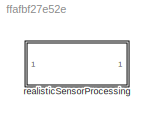
MODEL slx_ffafbf27e52e
KIND library
CONFIG AbsTol = auto
CONFIG EnableMultiTasking = off
CONFIG FixedStep = auto
CONFIG MaxStep = auto
CONFIG MinStep = auto
CONFIG RelTol = 1e-3
CONFIG SampleTimeConstraint = Unconstrained
CONFIG Solver = VariableStepAuto
CONFIG SolverName = VariableStepAuto
CONFIG StartTime = 0.0
CONFIG StopTime = 10.0
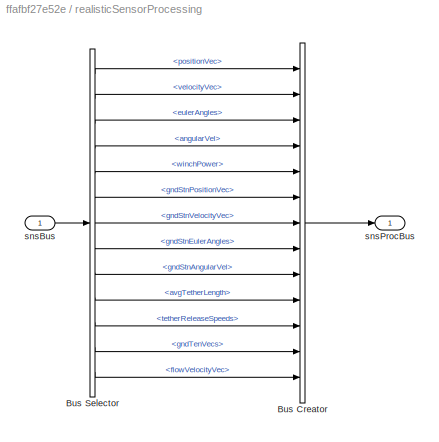
BLOCK [SubSystem] realisticSensorProcessing
  InitFcn = initializeBussesFromBlock(gcb)
  LoadFcn = initializeBussesFromBlock(gcb)
  Ports = [1, 1]
  RequestExecContextInheritance = off
  StartFcn = initializeBussesFromBlock(gcb)
BLOCK [BusCreator] realisticSensorProcessing/Bus Creator
  DisplayOption = bar
  InheritFromInputs = on
  Inputs = 13
  NonVirtualBus = on
  OutDataTypeStr = Bus: sensorsProcessingBus
  Ports = [13, 1]
BLOCK [BusSelector] realisticSensorProcessing/Bus Selector
  OutputAsBus = off
  OutputSignals = positionVec,velocityVec,eulerAngles,angularVel,winchPower,gndStnPositionVec,gndStnVelocityVec,gndStnEulerAngles,gndStnAngularVel,avgTetherLength,tetherReleaseSpeeds,gndTenVecs,flowVelocityVec
  Ports = [1, 13]
BLOCK [Inport] realisticSensorProcessing/snsBus
  IconDisplay = Port number
  OutDataTypeStr = Bus: sensorsBus
BLOCK [Outport] realisticSensorProcessing/snsProcBus
  IconDisplay = Port number
  OutDataTypeStr = Bus: sensorsProcessingBus
LINE realisticSensorProcessing/Bus Creator:1 -> realisticSensorProcessing/snsProcBus:1
LINE realisticSensorProcessing/Bus Selector:1 -> realisticSensorProcessing/Bus Creator:1
LINE realisticSensorProcessing/Bus Selector:10 -> realisticSensorProcessing/Bus Creator:10
LINE realisticSensorProcessing/Bus Selector:11 -> realisticSensorProcessing/Bus Creator:11
LINE realisticSensorProcessing/Bus Selector:12 -> realisticSensorProcessing/Bus Creator:12
LINE realisticSensorProcessing/Bus Selector:13 -> realisticSensorProcessing/Bus Creator:13
LINE realisticSensorProcessing/Bus Selector:2 -> realisticSensorProcessing/Bus Creator:2
LINE realisticSensorProcessing/Bus Selector:3 -> realisticSensorProcessing/Bus Creator:3
LINE realisticSensorProcessing/Bus Selector:4 -> realisticSensorProcessing/Bus Creator:4
LINE realisticSensorProcessing/Bus Selector:5 -> realisticSensorProcessing/Bus Creator:5
LINE realisticSensorProcessing/Bus Selector:6 -> realisticSensorProcessing/Bus Creator:6
LINE realisticSensorProcessing/Bus Selector:7 -> realisticSensorProcessing/Bus Creator:7
LINE realisticSensorProcessing/Bus Selector:8 -> realisticSensorProcessing/Bus Creator:8
LINE realisticSensorProcessing/Bus Selector:9 -> realisticSensorProcessing/Bus Creator:9
LINE realisticSensorProcessing/snsBus:1 -> realisticSensorProcessing/Bus Selector:1
